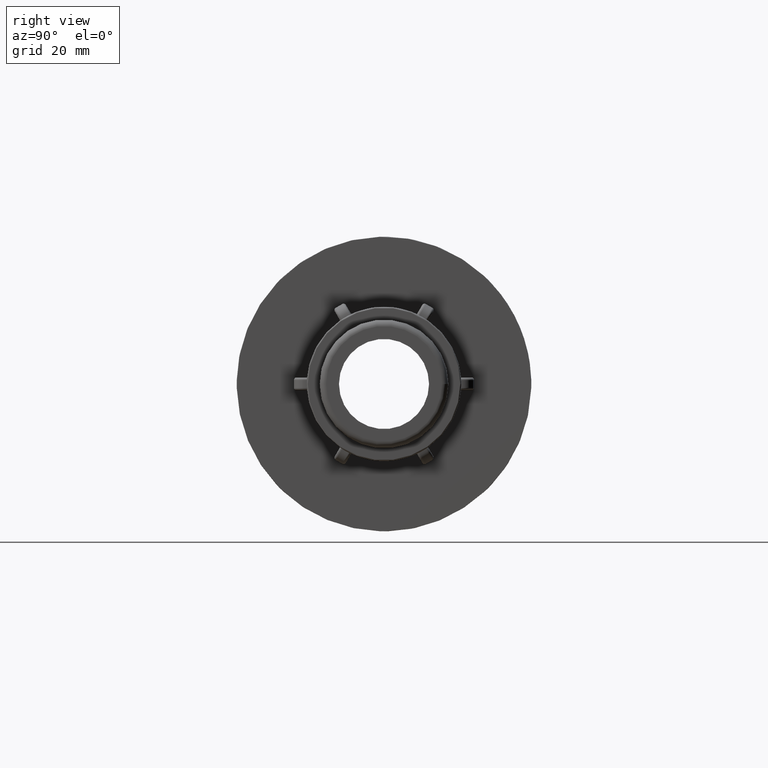
[diagram: clean part render]
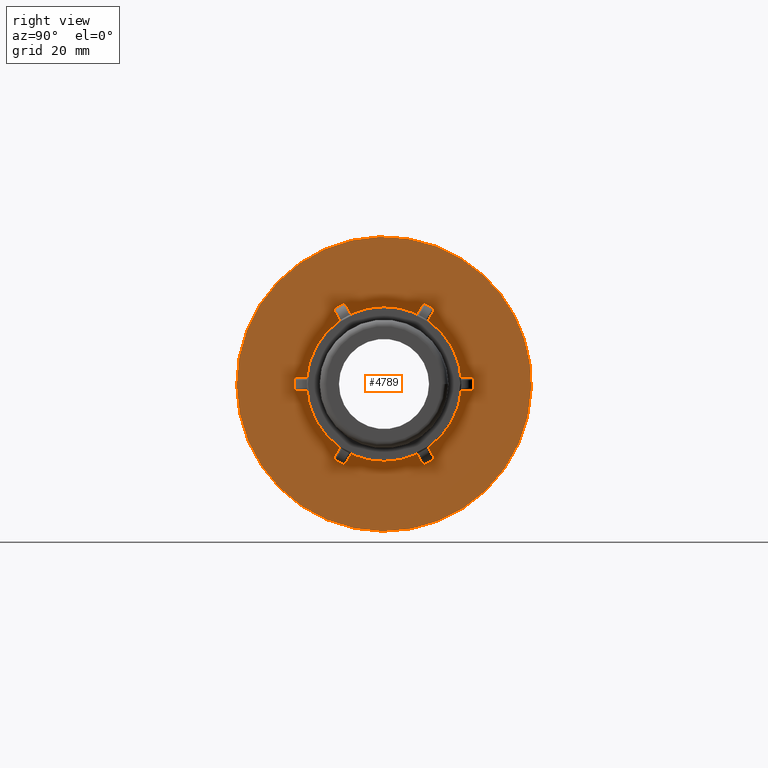
[diagram: same view with one face highlighted and labeled with its STEP entity id]
A machine part, right view. The second image highlights one B-rep face of the part: STEP entity #4789.
In plain terms, the highlighted planar face has unit normal (1, 0, 0).
Its self-contained STEP definition (entity closure, byte-faithful):
#47=FACE_BOUND('',#548,.T.);
#90=PLANE('',#5148);
#250=FACE_OUTER_BOUND('',#547,.T.);
#547=EDGE_LOOP('',(#3338));
#548=EDGE_LOOP('',(#3339,#3340,#3341,#3342,#3343,#3344,#3345,#3346,#3347,
#3348,#3349,#3350,#3351,#3352,#3353,#3354,#3355,#3356,#3357,#3358,#3359,
#3360,#3361,#3362,#3363,#3364,#3365,#3366,#3367,#3368,#3369,#3370,#3371,
#3372,#3373,#3374));
#919=LINE('',#7115,#1245);
#924=LINE('',#7148,#1250);
#931=LINE('',#7183,#1257);
#936=LINE('',#7216,#1262);
#943=LINE('',#7251,#1269);
#948=LINE('',#7284,#1274);
#955=LINE('',#7319,#1281);
#960=LINE('',#7352,#1286);
#967=LINE('',#7387,#1293);
#972=LINE('',#7420,#1298);
#977=LINE('',#7432,#1303);
#981=LINE('',#7443,#1307);
#985=LINE('',#7454,#1311);
#989=LINE('',#7465,#1315);
#993=LINE('',#7476,#1319);
#994=LINE('',#7487,#1320);
#995=LINE('',#7491,#1321);
#996=LINE('',#7495,#1322);
#1245=VECTOR('',#5628,2.17046138458279);
#1250=VECTOR('',#5651,2.17046138458279);
#1257=VECTOR('',#5676,2.17046138458279);
#1262=VECTOR('',#5699,2.17046138458279);
#1269=VECTOR('',#5724,2.17046138458279);
#1274=VECTOR('',#5747,2.17046138458279);
#1281=VECTOR('',#5772,2.17046138458279);
#1286=VECTOR('',#5795,2.17046138458279);
#1293=VECTOR('',#5820,2.17046138458279);
#1298=VECTOR('',#5843,2.17046138458279);
#1303=VECTOR('',#5860,1.58646);
#1307=VECTOR('',#5876,1.58646);
#1311=VECTOR('',#5892,1.58646);
#1315=VECTOR('',#5908,1.58646);
#1319=VECTOR('',#5924,1.58646);
#1320=VECTOR('',#5939,2.17046138458278);
#1321=VECTOR('',#5942,1.58646);
#1322=VECTOR('',#5945,2.17046138458279);
#1570=CIRCLE('',#5035,0.52882);
#1572=CIRCLE('',#5039,0.52882);
#1580=CIRCLE('',#5053,0.52882);
#1582=CIRCLE('',#5057,0.52882);
#1590=CIRCLE('',#5071,0.52882);
#1592=CIRCLE('',#5075,0.52882);
#1600=CIRCLE('',#5089,0.52882);
#1602=CIRCLE('',#5093,0.52882);
#1610=CIRCLE('',#5107,0.52882);
#1612=CIRCLE('',#5111,0.52882);
#1626=CIRCLE('',#5149,30.25);
#1627=CIRCLE('',#5150,15.8646);
#1628=CIRCLE('',#5151,15.8646);
#1629=CIRCLE('',#5152,15.8646);
#1630=CIRCLE('',#5153,15.8646);
#1631=CIRCLE('',#5154,15.8646);
#1632=CIRCLE('',#5155,0.52882);
#1633=CIRCLE('',#5156,0.52882);
#1634=CIRCLE('',#5157,15.8646);
#1882=VERTEX_POINT('',#7107);
#1883=VERTEX_POINT('',#7108);
#1884=VERTEX_POINT('',#7113);
#1887=VERTEX_POINT('',#7120);
#1888=VERTEX_POINT('',#7122);
#1893=VERTEX_POINT('',#7147);
#1900=VERTEX_POINT('',#7175);
#1901=VERTEX_POINT('',#7176);
#1902=VERTEX_POINT('',#7181);
#1905=VERTEX_POINT('',#7188);
#1906=VERTEX_POINT('',#7190);
#1911=VERTEX_POINT('',#7215);
#1918=VERTEX_POINT('',#7243);
#1919=VERTEX_POINT('',#7244);
#1920=VERTEX_POINT('',#7249);
#1923=VERTEX_POINT('',#7256);
#1924=VERTEX_POINT('',#7258);
#1929=VERTEX_POINT('',#7283);
#1936=VERTEX_POINT('',#7311);
#1937=VERTEX_POINT('',#7312);
#1938=VERTEX_POINT('',#7317);
#1941=VERTEX_POINT('',#7324);
#1942=VERTEX_POINT('',#7326);
#1947=VERTEX_POINT('',#7351);
#1954=VERTEX_POINT('',#7379);
#1955=VERTEX_POINT('',#7380);
#1956=VERTEX_POINT('',#7385);
#1959=VERTEX_POINT('',#7392);
#1960=VERTEX_POINT('',#7394);
#1965=VERTEX_POINT('',#7419);
#1971=VERTEX_POINT('',#7478);
#1972=VERTEX_POINT('',#7484);
#1973=VERTEX_POINT('',#7486);
#1974=VERTEX_POINT('',#7488);
#1975=VERTEX_POINT('',#7490);
#1976=VERTEX_POINT('',#7492);
#1977=VERTEX_POINT('',#7494);
#2352=EDGE_CURVE('',#1882,#1883,#1570,.F.);
#2356=EDGE_CURVE('',#1882,#1884,#919,.T.);
#2359=EDGE_CURVE('',#1887,#1888,#1572,.F.);
#2367=EDGE_CURVE('',#1893,#1888,#924,.T.);
#2376=EDGE_CURVE('',#1900,#1901,#1580,.F.);
#2380=EDGE_CURVE('',#1900,#1902,#931,.T.);
#2383=EDGE_CURVE('',#1905,#1906,#1582,.F.);
#2391=EDGE_CURVE('',#1911,#1906,#936,.T.);
#2400=EDGE_CURVE('',#1918,#1919,#1590,.F.);
#2404=EDGE_CURVE('',#1918,#1920,#943,.T.);
#2407=EDGE_CURVE('',#1923,#1924,#1592,.F.);
#2415=EDGE_CURVE('',#1929,#1924,#948,.T.);
#2424=EDGE_CURVE('',#1936,#1937,#1600,.F.);
#2428=EDGE_CURVE('',#1936,#1938,#955,.T.);
#2431=EDGE_CURVE('',#1941,#1942,#1602,.F.);
#2439=EDGE_CURVE('',#1947,#1942,#960,.T.);
#2448=EDGE_CURVE('',#1954,#1955,#1610,.F.);
#2452=EDGE_CURVE('',#1954,#1956,#967,.T.);
#2455=EDGE_CURVE('',#1959,#1960,#1612,.F.);
#2463=EDGE_CURVE('',#1965,#1960,#972,.T.);
#2470=EDGE_CURVE('',#1887,#1883,#977,.T.);
#2476=EDGE_CURVE('',#1905,#1901,#981,.T.);
#2482=EDGE_CURVE('',#1923,#1919,#985,.T.);
#2488=EDGE_CURVE('',#1941,#1937,#989,.T.);
#2494=EDGE_CURVE('',#1959,#1955,#993,.T.);
#2495=EDGE_CURVE('',#1971,#1971,#1626,.T.);
#2496=EDGE_CURVE('',#1911,#1884,#1627,.T.);
#2497=EDGE_CURVE('',#1929,#1902,#1628,.T.);
#2498=EDGE_CURVE('',#1947,#1920,#1629,.T.);
#2499=EDGE_CURVE('',#1965,#1938,#1630,.T.);
#2500=EDGE_CURVE('',#1972,#1956,#1631,.T.);
#2501=EDGE_CURVE('',#1972,#1973,#994,.T.);
#2502=EDGE_CURVE('',#1974,#1973,#1632,.F.);
#2503=EDGE_CURVE('',#1974,#1975,#995,.T.);
#2504=EDGE_CURVE('',#1976,#1975,#1633,.F.);
#2505=EDGE_CURVE('',#1976,#1977,#996,.T.);
#2506=EDGE_CURVE('',#1893,#1977,#1634,.T.);
#3338=ORIENTED_EDGE('',*,*,#2495,.T.);
#3339=ORIENTED_EDGE('',*,*,#2367,.T.);
#3340=ORIENTED_EDGE('',*,*,#2359,.F.);
#3341=ORIENTED_EDGE('',*,*,#2470,.T.);
#3342=ORIENTED_EDGE('',*,*,#2352,.F.);
#3343=ORIENTED_EDGE('',*,*,#2356,.T.);
#3344=ORIENTED_EDGE('',*,*,#2496,.F.);
#3345=ORIENTED_EDGE('',*,*,#2391,.T.);
#3346=ORIENTED_EDGE('',*,*,#2383,.F.);
#3347=ORIENTED_EDGE('',*,*,#2476,.T.);
#3348=ORIENTED_EDGE('',*,*,#2376,.F.);
#3349=ORIENTED_EDGE('',*,*,#2380,.T.);
#3350=ORIENTED_EDGE('',*,*,#2497,.F.);
#3351=ORIENTED_EDGE('',*,*,#2415,.T.);
#3352=ORIENTED_EDGE('',*,*,#2407,.F.);
#3353=ORIENTED_EDGE('',*,*,#2482,.T.);
#3354=ORIENTED_EDGE('',*,*,#2400,.F.);
#3355=ORIENTED_EDGE('',*,*,#2404,.T.);
#3356=ORIENTED_EDGE('',*,*,#2498,.F.);
#3357=ORIENTED_EDGE('',*,*,#2439,.T.);
#3358=ORIENTED_EDGE('',*,*,#2431,.F.);
#3359=ORIENTED_EDGE('',*,*,#2488,.T.);
#3360=ORIENTED_EDGE('',*,*,#2424,.F.);
#3361=ORIENTED_EDGE('',*,*,#2428,.T.);
#3362=ORIENTED_EDGE('',*,*,#2499,.F.);
#3363=ORIENTED_EDGE('',*,*,#2463,.T.);
#3364=ORIENTED_EDGE('',*,*,#2455,.F.);
#3365=ORIENTED_EDGE('',*,*,#2494,.T.);
#3366=ORIENTED_EDGE('',*,*,#2448,.F.);
#3367=ORIENTED_EDGE('',*,*,#2452,.T.);
#3368=ORIENTED_EDGE('',*,*,#2500,.F.);
#3369=ORIENTED_EDGE('',*,*,#2501,.T.);
#3370=ORIENTED_EDGE('',*,*,#2502,.F.);
#3371=ORIENTED_EDGE('',*,*,#2503,.T.);
#3372=ORIENTED_EDGE('',*,*,#2504,.F.);
#3373=ORIENTED_EDGE('',*,*,#2505,.T.);
#3374=ORIENTED_EDGE('',*,*,#2506,.F.);
#4789=ADVANCED_FACE('',(#250,#47),#90,.T.);
#5035=AXIS2_PLACEMENT_3D('',#7109,#5621,#5622);
#5039=AXIS2_PLACEMENT_3D('',#7123,#5634,#5635);
#5053=AXIS2_PLACEMENT_3D('',#7177,#5669,#5670);
#5057=AXIS2_PLACEMENT_3D('',#7191,#5682,#5683);
#5071=AXIS2_PLACEMENT_3D('',#7245,#5717,#5718);
#5075=AXIS2_PLACEMENT_3D('',#7259,#5730,#5731);
#5089=AXIS2_PLACEMENT_3D('',#7313,#5765,#5766);
#5093=AXIS2_PLACEMENT_3D('',#7327,#5778,#5779);
#5107=AXIS2_PLACEMENT_3D('',#7381,#5813,#5814);
#5111=AXIS2_PLACEMENT_3D('',#7395,#5826,#5827);
#5148=AXIS2_PLACEMENT_3D('',#7477,#5925,#5926);
#5149=AXIS2_PLACEMENT_3D('',#7479,#5927,#5928);
#5150=AXIS2_PLACEMENT_3D('',#7480,#5929,#5930);
#5151=AXIS2_PLACEMENT_3D('',#7481,#5931,#5932);
#5152=AXIS2_PLACEMENT_3D('',#7482,#5933,#5934);
#5153=AXIS2_PLACEMENT_3D('',#7483,#5935,#5936);
#5154=AXIS2_PLACEMENT_3D('',#7485,#5937,#5938);
#5155=AXIS2_PLACEMENT_3D('',#7489,#5940,#5941);
#5156=AXIS2_PLACEMENT_3D('',#7493,#5943,#5944);
#5157=AXIS2_PLACEMENT_3D('',#7496,#5946,#5947);
#5621=DIRECTION('center_axis',(-1.,0.,0.));
#5622=DIRECTION('ref_axis',(0.,-0.258819045102525,-0.965925826289067));
#5628=DIRECTION('',(0.,-0.499999999999999,0.866025403784439));
#5634=DIRECTION('center_axis',(-1.,0.,0.));
#5635=DIRECTION('ref_axis',(0.,0.965925826289068,-0.258819045102524));
#5651=DIRECTION('',(0.,0.499999999999999,-0.866025403784439));
#5669=DIRECTION('center_axis',(-1.,0.,0.));
#5670=DIRECTION('ref_axis',(0.,-0.965925826289069,-0.258819045102519));
#5676=DIRECTION('',(0.,0.500000000000001,0.866025403784438));
#5682=DIRECTION('center_axis',(-1.,0.,0.));
#5683=DIRECTION('ref_axis',(0.,0.25881904510252,-0.965925826289068));
#5699=DIRECTION('',(0.,-0.5,-0.866025403784438));
#5717=DIRECTION('center_axis',(-1.,0.,0.));
#5718=DIRECTION('ref_axis',(0.,-0.707106781186547,0.707106781186548));
#5724=DIRECTION('',(0.,1.,-3.88578058618805E-16));
#5730=DIRECTION('center_axis',(-1.,0.,0.));
#5731=DIRECTION('ref_axis',(0.,-0.707106781186547,-0.707106781186548));
#5747=DIRECTION('',(0.,-1.,0.));
#5765=DIRECTION('center_axis',(-1.,0.,0.));
#5766=DIRECTION('ref_axis',(0.,0.258819045102525,0.965925826289067));
#5772=DIRECTION('',(0.,0.5,-0.866025403784439));
#5778=DIRECTION('center_axis',(-1.,0.,0.));
#5779=DIRECTION('ref_axis',(0.,-0.965925826289069,0.258819045102518));
#5795=DIRECTION('',(0.,-0.5,0.866025403784439));
#5813=DIRECTION('center_axis',(-1.,0.,0.));
#5814=DIRECTION('ref_axis',(0.,0.965925826289069,0.258819045102518));
#5820=DIRECTION('',(0.,-0.5,-0.866025403784438));
#5826=DIRECTION('center_axis',(-1.,0.,0.));
#5827=DIRECTION('ref_axis',(0.,-0.258819045102522,0.965925826289068));
#5843=DIRECTION('',(0.,0.5,0.866025403784439));
#5860=DIRECTION('',(0.,-0.866025403784439,-0.499999999999999));
#5876=DIRECTION('',(0.,-0.866025403784438,0.5));
#5892=DIRECTION('',(0.,1.66533453693774E-16,1.));
#5908=DIRECTION('',(0.,0.866025403784439,0.5));
#5924=DIRECTION('',(0.,0.866025403784439,-0.5));
#5925=DIRECTION('center_axis',(1.,0.,0.));
#5926=DIRECTION('ref_axis',(0.,0.,-1.));
#5927=DIRECTION('center_axis',(1.,0.,0.));
#5928=DIRECTION('ref_axis',(0.,0.,-1.));
#5929=DIRECTION('center_axis',(1.,0.,0.));
#5930=DIRECTION('ref_axis',(0.,0.,-1.));
#5931=DIRECTION('center_axis',(1.,0.,0.));
#5932=DIRECTION('ref_axis',(0.,0.,-1.));
#5933=DIRECTION('center_axis',(1.,0.,0.));
#5934=DIRECTION('ref_axis',(0.,0.,-1.));
#5935=DIRECTION('center_axis',(1.,0.,0.));
#5936=DIRECTION('ref_axis',(0.,0.,-1.));
#5937=DIRECTION('center_axis',(1.,0.,0.));
#5938=DIRECTION('ref_axis',(0.,0.,-1.));
#5939=DIRECTION('',(0.,1.,1.7995154029594E-16));
#5940=DIRECTION('center_axis',(-1.,0.,0.));
#5941=DIRECTION('ref_axis',(0.,0.70710678118655,0.707106781186546));
#5942=DIRECTION('',(0.,0.,-1.));
#5943=DIRECTION('center_axis',(-1.,0.,0.));
#5944=DIRECTION('ref_axis',(0.,0.707106781186547,-0.707106781186548));
#5945=DIRECTION('',(0.,-1.,1.7995154029594E-16));
#5946=DIRECTION('center_axis',(1.,0.,0.));
#5947=DIRECTION('ref_axis',(0.,0.,-1.));
#7107=CARTESIAN_POINT('',(-40.755,7.84501111492677,-16.2320578369958));
#7108=CARTESIAN_POINT('',(-40.755,8.56739266895606,-16.425619391025));
#7109=CARTESIAN_POINT('Origin',(-40.755,8.30298266895606,-15.9676478369958));
#7113=CARTESIAN_POINT('',(-40.755,6.75978042263537,-14.3523831400139));
#7115=CARTESIAN_POINT('',(-40.755,3.15173361492677,-8.10306275297591));
#7120=CARTESIAN_POINT('',(-40.755,9.94130733104392,-15.632389391025));
#7122=CARTESIAN_POINT('',(-40.755,10.1348688850732,-14.9100078369958));
#7123=CARTESIAN_POINT('Origin',(-40.755,9.67689733104392,-15.1744178369958));
#7147=CARTESIAN_POINT('',(-40.755,9.04963819278181,-13.0303331400139));
#7148=CARTESIAN_POINT('',(-40.755,7.7551788850732,-10.7882638507322));
#7175=CARTESIAN_POINT('',(-40.755,-10.1348688850732,-14.9100078369957));
#7176=CARTESIAN_POINT('',(-40.755,-9.94130733104394,-15.632389391025));
#7177=CARTESIAN_POINT('Origin',(-40.755,-9.67689733104394,-15.1744178369957));
#7181=CARTESIAN_POINT('',(-40.755,-9.04963819278183,-13.0303331400139));
#7183=CARTESIAN_POINT('',(-40.755,-1.47544138507321,0.0885605574633935));
#7188=CARTESIAN_POINT('',(-40.755,-8.56739266895607,-16.425619391025));
#7190=CARTESIAN_POINT('',(-40.755,-7.84501111492679,-16.2320578369957));
#7191=CARTESIAN_POINT('Origin',(-40.755,-8.30298266895608,-15.9676478369957));
#7215=CARTESIAN_POINT('',(-40.755,-6.7597804226354,-14.3523831400139));
#7216=CARTESIAN_POINT('',(-40.755,-1.49917111492679,-5.24074054029286));
#7243=CARTESIAN_POINT('',(-40.755,-17.97988,1.32205));
#7244=CARTESIAN_POINT('',(-40.755,-18.5087,0.793230000000004));
#7245=CARTESIAN_POINT('Origin',(-40.755,-17.97988,0.793230000000004));
#7249=CARTESIAN_POINT('',(-40.755,-15.8094186154172,1.32205));
#7251=CARTESIAN_POINT('',(-40.755,3.305125,1.32205));
#7256=CARTESIAN_POINT('',(-40.755,-18.5087,-0.793229999999997));
#7258=CARTESIAN_POINT('',(-40.755,-17.97988,-1.32205));
#7259=CARTESIAN_POINT('Origin',(-40.755,-17.97988,-0.793229999999997));
#7283=CARTESIAN_POINT('',(-40.755,-15.8094186154172,-1.32205));
#7284=CARTESIAN_POINT('',(-40.755,-1.32205,-1.32205));
#7311=CARTESIAN_POINT('',(-40.755,-7.84501111492678,16.2320578369958));
#7312=CARTESIAN_POINT('',(-40.755,-8.56739266895607,16.425619391025));
#7313=CARTESIAN_POINT('Origin',(-40.755,-8.30298266895607,15.9676478369958));
#7317=CARTESIAN_POINT('',(-40.755,-6.75978042263538,14.3523831400139));
#7319=CARTESIAN_POINT('',(-40.755,0.814416385073213,1.23348944253661));
#7324=CARTESIAN_POINT('',(-40.755,-9.94130733104393,15.632389391025));
#7326=CARTESIAN_POINT('',(-40.755,-10.1348688850732,14.9100078369958));
#7327=CARTESIAN_POINT('Origin',(-40.755,-9.67689733104393,15.1744178369958));
#7351=CARTESIAN_POINT('',(-40.755,-9.04963819278182,13.0303331400139));
#7352=CARTESIAN_POINT('',(-40.755,-3.78902888507321,3.91869054029287));
#7379=CARTESIAN_POINT('',(-40.755,10.1348688850732,14.9100078369957));
#7380=CARTESIAN_POINT('',(-40.755,9.94130733104393,15.632389391025));
#7381=CARTESIAN_POINT('Origin',(-40.755,9.67689733104393,15.1744178369958));
#7385=CARTESIAN_POINT('',(-40.755,9.04963819278182,13.0303331400139));
#7387=CARTESIAN_POINT('',(-40.755,5.44159138507322,6.78101275297591));
#7392=CARTESIAN_POINT('',(-40.755,8.56739266895607,16.425619391025));
#7394=CARTESIAN_POINT('',(-40.755,7.84501111492678,16.2320578369957));
#7395=CARTESIAN_POINT('Origin',(-40.755,8.30298266895607,15.9676478369957));
#7419=CARTESIAN_POINT('',(-40.755,6.75978042263539,14.3523831400139));
#7420=CARTESIAN_POINT('',(-40.755,5.46532111492678,12.1103138507322));
#7432=CARTESIAN_POINT('',(-40.755,14.6311105574634,-12.9247302358054));
#7443=CARTESIAN_POINT('',(-40.755,-3.87758944253662,-19.1332785462447));
#7454=CARTESIAN_POINT('',(-40.755,-18.5087,0.661025000000005));
#7465=CARTESIAN_POINT('',(-40.755,-2.73266055746338,19.7943035462447));
#7476=CARTESIAN_POINT('',(-40.755,15.7760394425366,12.2637052358054));
#7477=CARTESIAN_POINT('Origin',(-40.755,15.8646,0.));
#7478=CARTESIAN_POINT('',(-40.755,20.5172620912777,22.2284605017491));
#7479=CARTESIAN_POINT('Origin',(-40.755,0.,0.));
#7480=CARTESIAN_POINT('Origin',(-40.755,0.,0.));
#7481=CARTESIAN_POINT('Origin',(-40.755,0.,0.));
#7482=CARTESIAN_POINT('Origin',(-40.755,0.,0.));
#7483=CARTESIAN_POINT('Origin',(-40.755,0.,0.));
#7484=CARTESIAN_POINT('',(-40.755,15.8094186154172,1.32205));
#7485=CARTESIAN_POINT('Origin',(-40.755,0.,0.));
#7486=CARTESIAN_POINT('',(-40.755,17.97988,1.32205));
#7487=CARTESIAN_POINT('',(-40.755,17.18665,1.32205));
#7488=CARTESIAN_POINT('',(-40.755,18.5087,0.79323));
#7489=CARTESIAN_POINT('Origin',(-40.755,17.97988,0.79323));
#7490=CARTESIAN_POINT('',(-40.755,18.5087,-0.79323));
#7491=CARTESIAN_POINT('',(-40.755,18.5087,-0.661025));
#7492=CARTESIAN_POINT('',(-40.755,17.97988,-1.32205));
#7493=CARTESIAN_POINT('Origin',(-40.755,17.97988,-0.79323));
#7494=CARTESIAN_POINT('',(-40.755,15.8094186154172,-1.32205));
#7495=CARTESIAN_POINT('',(-40.755,12.559475,-1.32205));
#7496=CARTESIAN_POINT('Origin',(-40.755,0.,0.));